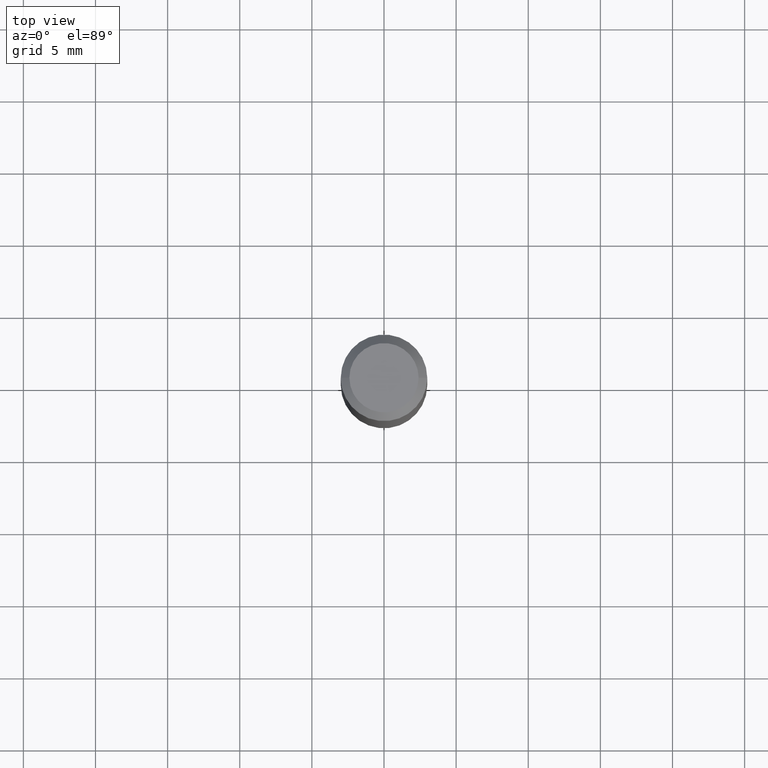
[diagram: clean part render]
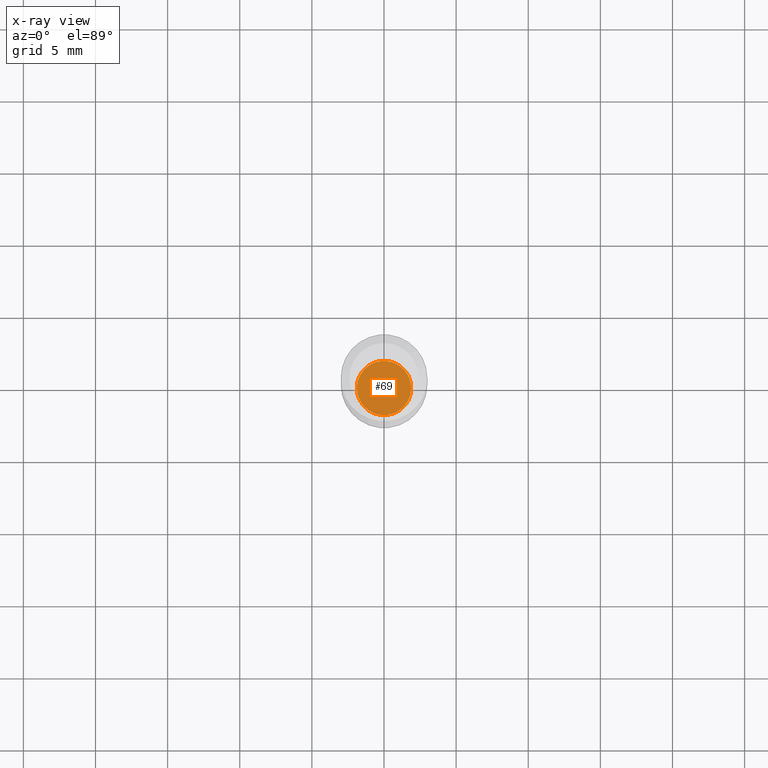
[diagram: x-ray — body ghosted, one internal face saturated and labeled with its STEP entity id]
A machine part, top view, then the same camera in x-ray: the body is ghosted and one INTERNAL B-rep face — a face not visible from any outside direction — is saturated and labeled: STEP entity #69.
In plain terms, the highlighted planar face has unit normal (-0, 0, 1).
Its self-contained STEP definition (entity closure, byte-faithful):
#36 = DIRECTION ( 'NONE',  ( -2.445468806185136597E-29, 3.491481338843145583E-15, 1.000000000000000000 ) ) ;
#39 = CARTESIAN_POINT ( 'NONE',  ( 0.07424999999999999656, -6.211345301801953456E-15, -1.630500000000000060 ) ) ;
#69 = ADVANCED_FACE ( 'NONE', ( #214 ), #138, .F. ) ;
#101 = CARTESIAN_POINT ( 'NONE',  ( -0.07424999999999999656, -5.162633114507762892E-15, -1.630500000000000060 ) ) ;
#136 = VERTEX_POINT ( 'NONE', #101 ) ;
#138 = PLANE ( 'NONE',  #314 ) ;
#178 = DIRECTION ( 'NONE',  ( 1.000000000000000000, -6.982962677686265922E-15, 4.876176775795935793E-29 ) ) ;
#188 = EDGE_LOOP ( 'NONE', ( #322, #505 ) ) ;
#214 = FACE_OUTER_BOUND ( 'NONE', #188, .T. ) ;
#224 = EDGE_CURVE ( 'NONE', #136, #332, #326, .T. ) ;
#249 = CIRCLE ( 'NONE', #469, 0.07424999999999999656 ) ;
#314 = AXIS2_PLACEMENT_3D ( 'NONE', #337, #371, #178 ) ;
#322 = ORIENTED_EDGE ( 'NONE', *, *, #325, .F. ) ;
#325 = EDGE_CURVE ( 'NONE', #332, #136, #249, .T. ) ;
#326 = CIRCLE ( 'NONE', #425, 0.07424999999999999656 ) ;
#332 = VERTEX_POINT ( 'NONE', #39 ) ;
#337 = CARTESIAN_POINT ( 'NONE',  ( 3.987336888484864983E-29, -5.692860322983748752E-15, -1.630500000000000060 ) ) ;
#371 = DIRECTION ( 'NONE',  ( -2.438088387897960049E-29, 3.491481338843145188E-15, 1.000000000000000000 ) ) ;
#395 = DIRECTION ( 'NONE',  ( 1.000000000000000000, -6.982962677686264344E-15, 0.000000000000000000 ) ) ;
#424 = DIRECTION ( 'NONE',  ( 1.000000000000000000, -6.982962677686264344E-15, 0.000000000000000000 ) ) ;
#425 = AXIS2_PLACEMENT_3D ( 'NONE', #463, #470, #424 ) ;
#438 = CARTESIAN_POINT ( 'NONE',  ( 3.987336888484864983E-29, -5.692860322983748752E-15, -1.630500000000000060 ) ) ;
#463 = CARTESIAN_POINT ( 'NONE',  ( 3.987336888484864983E-29, -5.692860322983748752E-15, -1.630500000000000060 ) ) ;
#469 = AXIS2_PLACEMENT_3D ( 'NONE', #438, #36, #395 ) ;
#470 = DIRECTION ( 'NONE',  ( -2.445468806185136597E-29, 3.491481338843145583E-15, 1.000000000000000000 ) ) ;
#505 = ORIENTED_EDGE ( 'NONE', *, *, #224, .F. ) ;